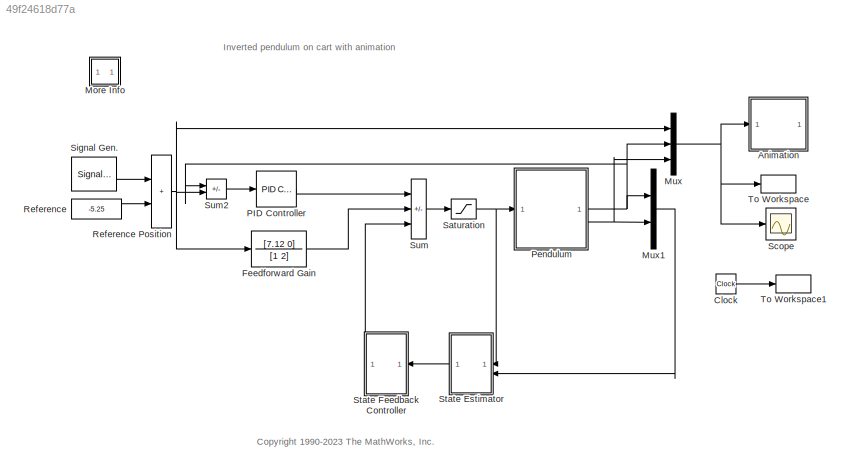
MODEL slx_49f24618d77a
KIND model
CONFIG AbsTol = 1e-6
CONFIG EnableMultiTasking = off
CONFIG FixedStep = 0.02
CONFIG MaxStep = 0.02
CONFIG MinStep = auto
CONFIG RelTol = 1e-3
CONFIG SampleTimeConstraint = Unconstrained
CONFIG SolverName = FixedStepAuto
CONFIG StartTime = 0
CONFIG StopTime = 10
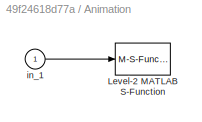
BLOCK [SubSystem] Animation
BLOCK [M-S-Function] Animation/Level-2 MATLAB S-Function
  FunctionName = pendan
  Parameters = RefBlock
BLOCK [Inport] Animation/in_1
BLOCK [Clock] Clock
BLOCK [TransferFcn] Feedforward Gain
  Denominator = [1 2]
  Numerator = [7.12 0]
BLOCK [SubSystem] More Info
  OpenFcn = showExample('simulink_general/penddemoExample')
BLOCK [Mux] Mux
  DisplayOption = bar
  Inputs = 3
BLOCK [Mux] Mux1
  DisplayOption = bar
  Inputs = 2
BLOCK [Reference] PID Controller   REF=slpidlib/PID Controller
  LibrarySourceBlock = simulink/Continuous/PID Controller
  SourceBlock = slpidlib/PID Controller
  SourceType = PID 1dof
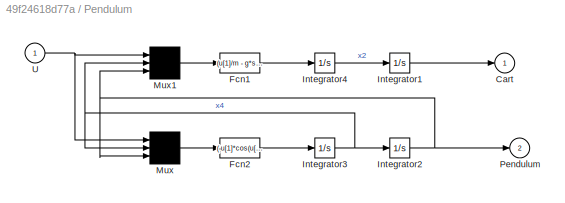
BLOCK [SubSystem] Pendulum
BLOCK [Outport] Pendulum/Cart
  InitialOutput = 0
  Unit = m
  VectorParamsAs1DForOutWhenUnconnected = off
BLOCK [Fcn] Pendulum/Fcn1
  Expr = (u[1]/m - g*sin(u[3])*cos(u[3]) + l*power(u[2],2)*sin(u[3]))/(Mcart/m + power(sin(u[3]),2))
BLOCK [Fcn] Pendulum/Fcn2
  Expr = (-u[1]*cos(u[3])/m + (Mcart+m)*g*sin(u[3])/m - l*power(u[2],2)*sin(u[3])*cos(u[3]))/(l*(Mcart/m + power(sin(u[3]),2)))
BLOCK [Integrator] Pendulum/Integrator1
BLOCK [Integrator] Pendulum/Integrator2
BLOCK [Integrator] Pendulum/Integrator3
BLOCK [Integrator] Pendulum/Integrator4
BLOCK [Mux] Pendulum/Mux
  Inputs = 3
BLOCK [Mux] Pendulum/Mux1
  Inputs = 3
BLOCK [Outport] Pendulum/Pendulum
  InitialOutput = 0
  Port = 2
  Unit = rad
  VectorParamsAs1DForOutWhenUnconnected = off
BLOCK [Inport] Pendulum/U
  Unit = N
BLOCK [Constant] Reference
  Value = -5.25
BLOCK [Sum] Reference Position
  IconShape = rectangular
  InputSameDT = on
  OutDataTypeStr = Inherit: Same as first input
  SaturateOnIntegerOverflow = on
BLOCK [Saturate] Saturation
  LowerLimit = -10
  UpperLimit = 10
BLOCK [Scope] Scope
  Floating = off
  NumInputPorts = 1
  ScopeSpecificationString = Simulink.scopes.TimeScopeBlockCfg('CurrentConfiguration', extmgr.ConfigurationSet(extmgr.Configuration('Core','General UI',true),extmgr.Configuration('Core','Source UI',true),extmgr.Configuration('Sources','WiredSimulink',true),extmgr.Configuration('Visuals','Time Domain',true,'SerializedDisplays',{struct('MinYLimReal','-5.9149','MaxYLimReal','0.71919','YLabelReal','Refernce and Cart Position (m),...<+1696ch>
BLOCK [SignalGenerator] Signal Gen.
  Amplitude = 0
  Frequency = 0.0400000
  Units = rad/sec
  WaveForm = square
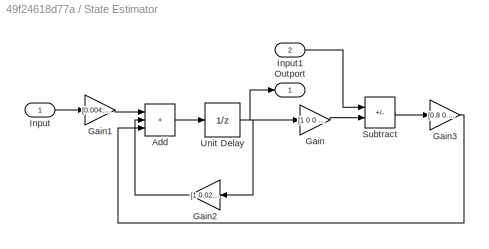
BLOCK [SubSystem] State Estimator
BLOCK [Sum] State Estimator/Add
  IconShape = rectangular
  Inputs = +++
BLOCK [Gain] State Estimator/Gain
  Gain = [1 0 0 0;0 0 1 0]
  Multiplication = Matrix(K*u)
BLOCK [Gain] State Estimator/Gain1
  Gain = [0.004;0.044;-0.0014;-0.1446]
  Multiplication = Matrix(K*u)
BLOCK [Gain] State Estimator/Gain2
  Gain = [1 0.02 -0.0009 0;0 1 -0.0907 -0.0009;0 0 1.0094 0.0201;0 0 0.9249 1.0094];
  Multiplication = Matrix(K*u)
BLOCK [Gain] State Estimator/Gain3
  Gain = [0.8 0.45;7.16 6.28;-0.062 0.441;-1.044 10]
  Multiplication = Matrix(K*u)
BLOCK [Inport] State Estimator/Input
BLOCK [Inport] State Estimator/Input1
  Port = 2
BLOCK [Outport] State Estimator/Outport
BLOCK [Sum] State Estimator/Subtract
  IconShape = rectangular
  Inputs = +-
BLOCK [UnitDelay] State Estimator/Unit Delay
  HasFrameUpgradeWarning = on
  InitialCondition = zeros(4,1)
  SampleTime = -1
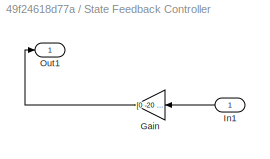
BLOCK [SubSystem] State Feedback Controller
BLOCK [Gain] State Feedback Controller/Gain
  Gain = [0 -20 -166.5 -15.2]
  Multiplication = Matrix(K*u)
BLOCK [Inport] State Feedback Controller/In1
BLOCK [Outport] State Feedback Controller/Out1
BLOCK [Sum] Sum
  IconShape = rectangular
  InputSameDT = on
  Inputs = ++-
  OutDataTypeStr = Inherit: Same as first input
  SaturateOnIntegerOverflow = on
BLOCK [Sum] Sum2
  IconShape = rectangular
  InputSameDT = on
  Inputs = -+
  OutDataTypeStr = Inherit: Same as first input
  SaturateOnIntegerOverflow = on
BLOCK [ToWorkspace] To Workspace
  SampleTime = 0.1
  VariableName = y
BLOCK [ToWorkspace] To Workspace1
  SampleTime = 0.1
  VariableName = t
ANNOTATION (root): <copyright redacted>
ANNOTATION (root): Inverted pendulum on cart with animation
LINE Animation/in_1:1 -> Animation/Level-2 MATLAB S-Function:1
LINE Clock:1 -> To Workspace1:1
LINE Feedforward Gain:1 -> Sum:2
LINE Mux1:1 -> State Estimator:2
NET Mux:1 -> Animation:1, Scope:1, To Workspace:1
LINE PID Controller :1 -> Sum:1
LINE Pendulum/Fcn1:1 -> Pendulum/Integrator4:1
LINE Pendulum/Fcn2:1 -> Pendulum/Integrator3:1
LINE Pendulum/Integrator1:1 -> Pendulum/Cart:1
NET Pendulum/Integrator2:1 -> Pendulum/Mux1:3, Pendulum/Mux:3, Pendulum/Pendulum:1
NET Pendulum/Integrator3:1 -> Pendulum/Integrator2:1, Pendulum/Mux1:2, Pendulum/Mux:2
LINE Pendulum/Integrator4:1 -> Pendulum/Integrator1:1
LINE Pendulum/Mux1:1 -> Pendulum/Fcn1:1
LINE Pendulum/Mux:1 -> Pendulum/Fcn2:1
NET Pendulum/U:1 -> Pendulum/Mux1:1, Pendulum/Mux:1
NET Pendulum:1 -> Mux1:1, Mux:2, Sum2:1
NET Pendulum:2 -> Mux1:2, Mux:3
NET Reference Position:1 -> Feedforward Gain:1, Mux:1, Sum2:2
LINE Reference:1 -> Reference Position:2
NET Saturation:1 -> Pendulum:1, State Estimator:1
LINE Signal Gen.:1 -> Reference Position:1
LINE State Estimator/Add:1 -> State Estimator/Unit Delay:1
LINE State Estimator/Gain1:1 -> State Estimator/Add:1
LINE State Estimator/Gain2:1 -> State Estimator/Add:2
LINE State Estimator/Gain3:1 -> State Estimator/Add:3
LINE State Estimator/Gain:1 -> State Estimator/Subtract:2
LINE State Estimator/Input1:1 -> State Estimator/Subtract:1
LINE State Estimator/Input:1 -> State Estimator/Gain1:1
LINE State Estimator/Subtract:1 -> State Estimator/Gain3:1
NET State Estimator/Unit Delay:1 -> State Estimator/Gain2:1, State Estimator/Gain:1, State Estimator/Outport:1
LINE State Estimator:1 -> State Feedback Controller:1
LINE State Feedback Controller/Gain:1 -> State Feedback Controller/Out1:1
LINE State Feedback Controller/In1:1 -> State Feedback Controller/Gain:1
LINE State Feedback Controller:1 -> Sum:3
LINE Sum2:1 -> PID Controller :1
LINE Sum:1 -> Saturation:1
note: NET lines group one-source signal fan-out (src -> all destinations, sorted); 1:1 wires keep LINE
